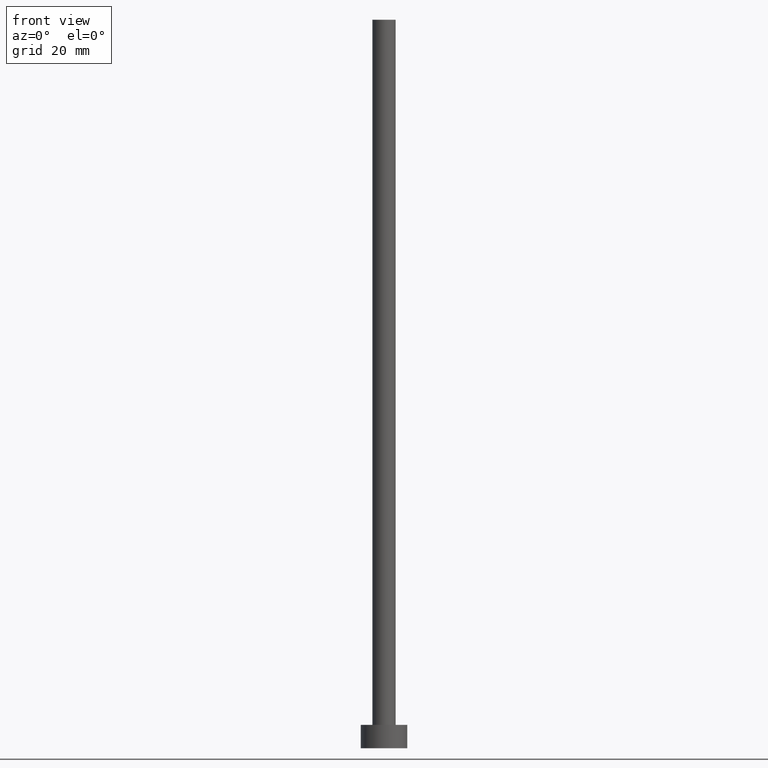
[diagram: clean part render]
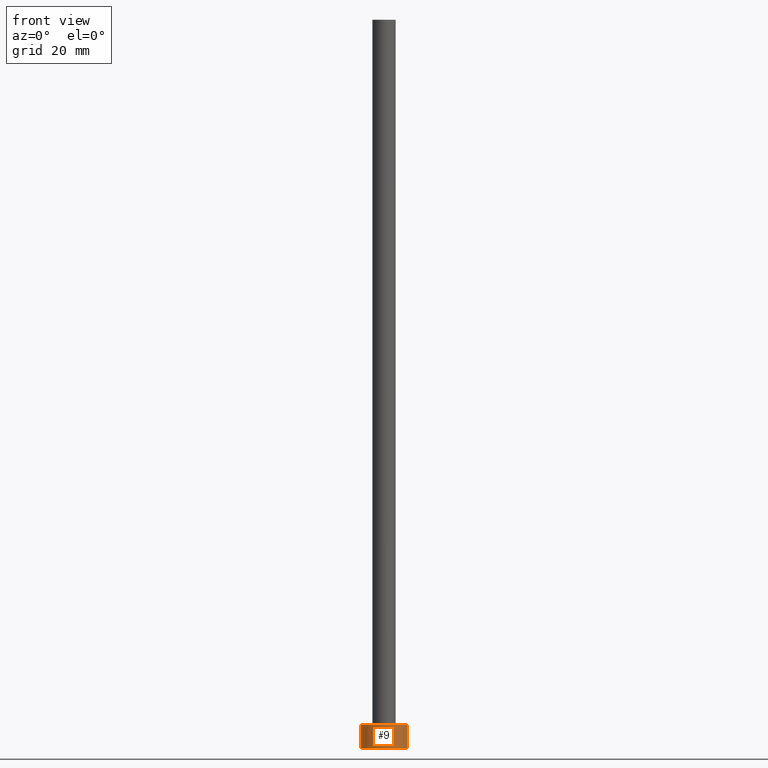
[diagram: same view with one face highlighted and labeled with its STEP entity id]
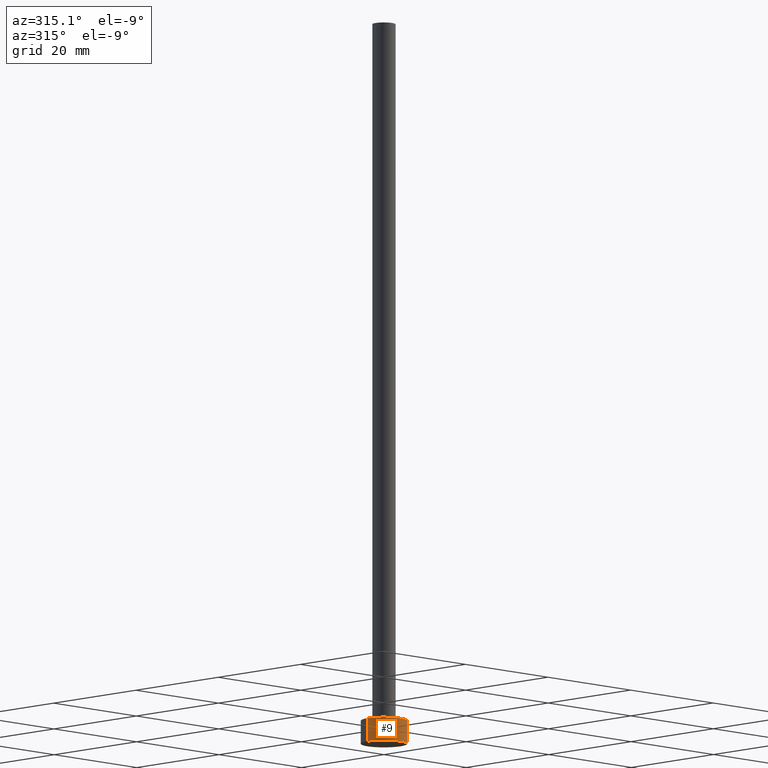
[diagram: same view with one face highlighted and labeled with its STEP entity id]
A machine part, front view. The second image highlights one B-rep face of the part: STEP entity #9.
A second angle (auxiliary view) of the same face is appended — the face is thin or edge-on in the first view.
In plain terms, the highlighted cylindrical surface (edge-blend (fillet) strip) has radius 4 mm, axis along (-0, -0, -1).
Its self-contained STEP definition (entity closure, byte-faithful):
#7 = CIRCLE ( 'NONE', #247, 4.000000000000000000 ) ;
#9 = ADVANCED_FACE ( 'NONE', ( #115 ), #175, .T. ) ;
#15 = EDGE_CURVE ( 'NONE', #154, #16, #48, .T. ) ;
#16 = VERTEX_POINT ( 'NONE', #255 ) ;
#18 = EDGE_CURVE ( 'NONE', #223, #156, #151, .T. ) ;
#28 = ORIENTED_EDGE ( 'NONE', *, *, #233, .T. ) ;
#29 = CARTESIAN_POINT ( 'NONE',  ( 0.000000000000000000, 0.000000000000000000, 4.000000000000000000 ) ) ;
#34 = DIRECTION ( 'NONE',  ( -1.000000000000000000, 0.000000000000000000, 0.000000000000000000 ) ) ;
#37 = DIRECTION ( 'NONE',  ( -0.000000000000000000, -0.000000000000000000, -1.000000000000000000 ) ) ;
#48 = LINE ( 'NONE', #216, #92 ) ;
#67 = AXIS2_PLACEMENT_3D ( 'NONE', #29, #121, #239 ) ;
#79 = VECTOR ( 'NONE', #217, 1000.000000000000000 ) ;
#81 = CARTESIAN_POINT ( 'NONE',  ( 4.000000000000000000, 4.898587196589412829E-16, 0.000000000000000000 ) ) ;
#82 = DIRECTION ( 'NONE',  ( 0.000000000000000000, 0.000000000000000000, 1.000000000000000000 ) ) ;
#86 = ORIENTED_EDGE ( 'NONE', *, *, #126, .F. ) ;
#92 = VECTOR ( 'NONE', #134, 1000.000000000000000 ) ;
#96 = CARTESIAN_POINT ( 'NONE',  ( 0.000000000000000000, 0.000000000000000000, 4.000000000000000000 ) ) ;
#103 = CARTESIAN_POINT ( 'NONE',  ( -4.000000000000000000, 0.000000000000000000, 4.000000000000000000 ) ) ;
#115 = FACE_OUTER_BOUND ( 'NONE', #138, .T. ) ;
#121 = DIRECTION ( 'NONE',  ( 0.000000000000000000, 0.000000000000000000, 1.000000000000000000 ) ) ;
#125 = CARTESIAN_POINT ( 'NONE',  ( 4.000000000000000000, 4.898587196589412829E-16, 4.000000000000000000 ) ) ;
#126 = EDGE_CURVE ( 'NONE', #154, #223, #158, .T. ) ;
#134 = DIRECTION ( 'NONE',  ( -0.000000000000000000, -0.000000000000000000, -1.000000000000000000 ) ) ;
#136 = CARTESIAN_POINT ( 'NONE',  ( 4.000000000000000000, 4.898587196589412829E-16, 4.000000000000000000 ) ) ;
#138 = EDGE_LOOP ( 'NONE', ( #232, #86, #187, #28 ) ) ;
#151 = LINE ( 'NONE', #136, #79 ) ;
#154 = VERTEX_POINT ( 'NONE', #103 ) ;
#156 = VERTEX_POINT ( 'NONE', #81 ) ;
#157 = DIRECTION ( 'NONE',  ( 1.000000000000000000, 0.000000000000000000, 0.000000000000000000 ) ) ;
#158 = CIRCLE ( 'NONE', #67, 4.000000000000000000 ) ;
#175 = CYLINDRICAL_SURFACE ( 'NONE', #210, 4.000000000000000000 ) ;
#187 = ORIENTED_EDGE ( 'NONE', *, *, #15, .T. ) ;
#210 = AXIS2_PLACEMENT_3D ( 'NONE', #96, #37, #34 ) ;
#216 = CARTESIAN_POINT ( 'NONE',  ( -4.000000000000000000, 0.000000000000000000, 4.000000000000000000 ) ) ;
#217 = DIRECTION ( 'NONE',  ( -0.000000000000000000, -0.000000000000000000, -1.000000000000000000 ) ) ;
#223 = VERTEX_POINT ( 'NONE', #125 ) ;
#232 = ORIENTED_EDGE ( 'NONE', *, *, #18, .F. ) ;
#233 = EDGE_CURVE ( 'NONE', #16, #156, #7, .T. ) ;
#239 = DIRECTION ( 'NONE',  ( 1.000000000000000000, 0.000000000000000000, 0.000000000000000000 ) ) ;
#243 = CARTESIAN_POINT ( 'NONE',  ( 0.000000000000000000, 0.000000000000000000, 0.000000000000000000 ) ) ;
#247 = AXIS2_PLACEMENT_3D ( 'NONE', #243, #82, #157 ) ;
#255 = CARTESIAN_POINT ( 'NONE',  ( -4.000000000000000000, 0.000000000000000000, 0.000000000000000000 ) ) ;